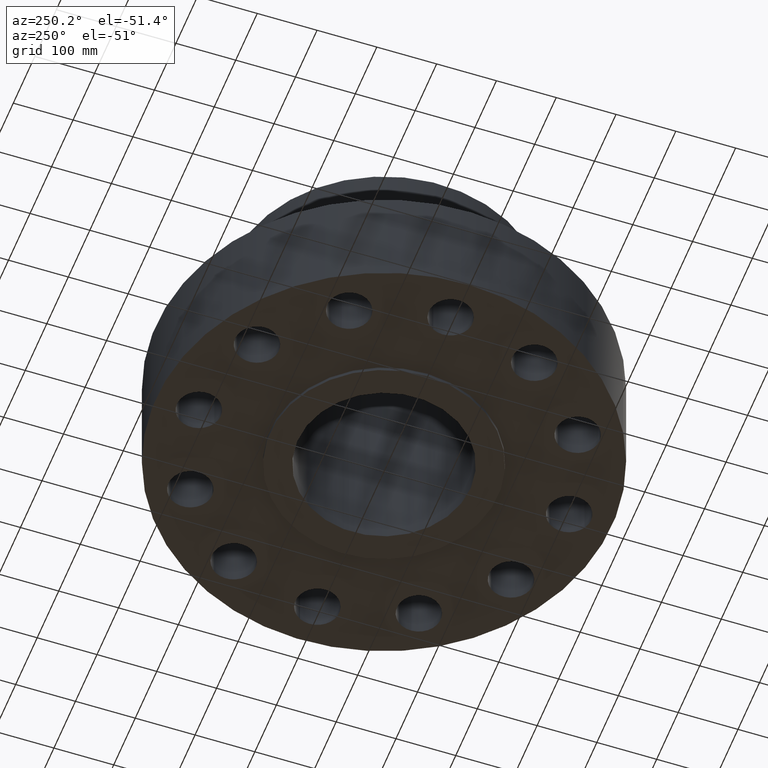
[diagram: clean part render]
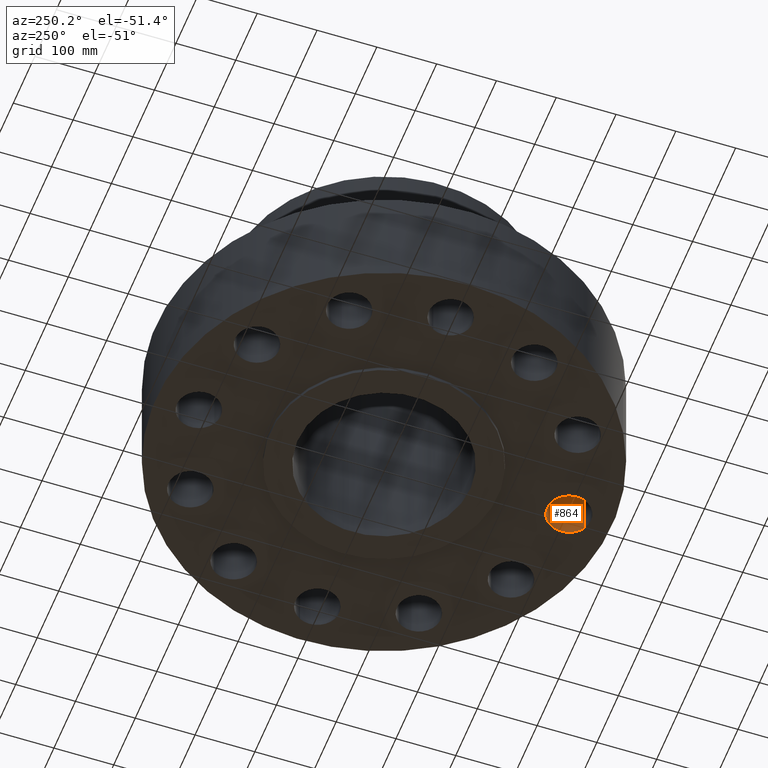
[diagram: same view with one face highlighted and labeled with its STEP entity id]
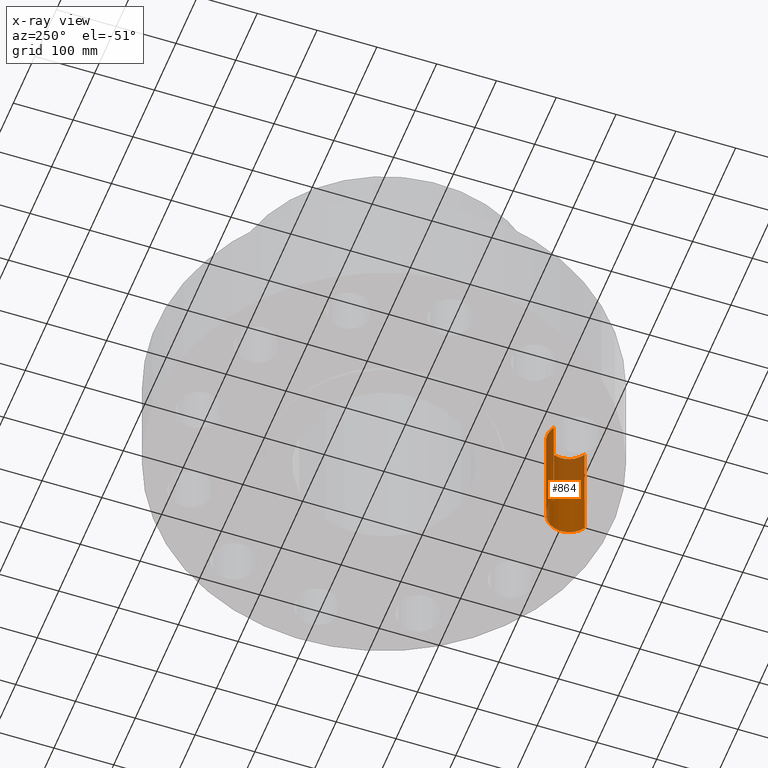
[diagram: x-ray of the same camera — body ghosted, the highlighted face saturated]
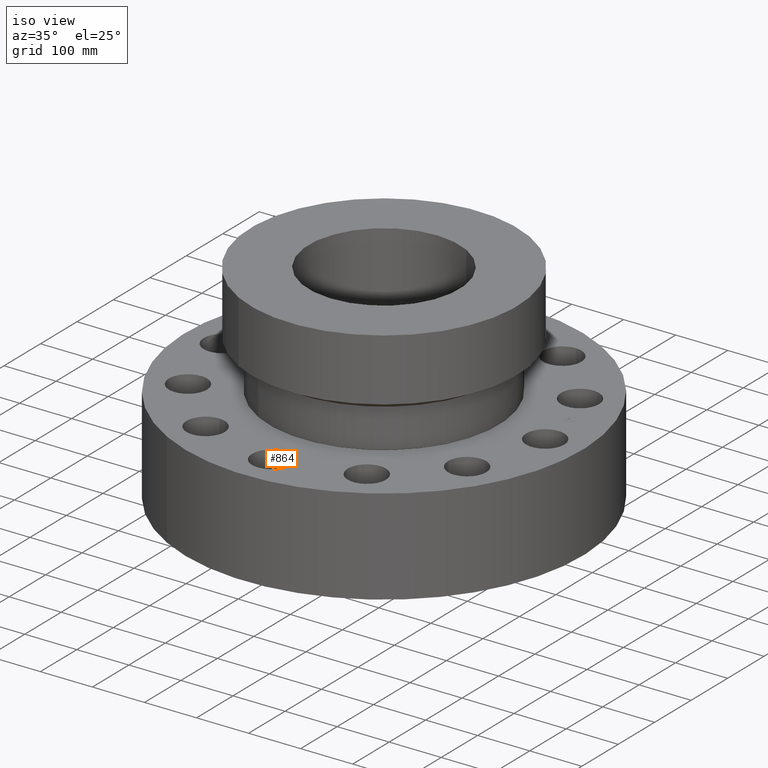
[diagram: same view with one face highlighted and labeled with its STEP entity id]
A machine part, auxiliary view. The second image highlights one B-rep face of the part: STEP entity #864.
The next image is the same camera in x-ray: the body ghosted, the highlighted face saturated — about 45% of this face is hidden behind the body in this view.
A second angle (iso view) of the same face is appended — the face is thin or edge-on in the first view.
In plain terms, the highlighted cylindrical surface (edge-blend (fillet) strip) has radius 36.576 mm, axis along (-0, 0, 1).
Its self-contained STEP definition (entity closure, byte-faithful):
#172=AXIS2_PLACEMENT_3D('Circle Axis2P3D',#170,#171,$) ;
#825=AXIS2_PLACEMENT_3D('Cylinder Axis2P3D',#822,#823,#824) ;
#855=AXIS2_PLACEMENT_3D('Circle Axis2P3D',#853,#854,$) ;
#165=CARTESIAN_POINT('Vertex',(0.690372775593,-13.4537188892,0.)) ;
#167=CARTESIAN_POINT('Vertex',(-0.690372775593,-10.9262811109,0.)) ;
#170=CARTESIAN_POINT('Axis2P3D Location',(1.53857679003E-015,-12.19,0.)) ;
#822=CARTESIAN_POINT('Axis2P3D Location',(7.46422224083E-016,-12.19,0.00393700787402)) ;
#827=CARTESIAN_POINT('Line Origine',(-0.690372775593,-10.9262811109,3.62500000001)) ;
#831=CARTESIAN_POINT('Vertex',(-0.690372775593,-10.9262811109,7.25000000003)) ;
#838=CARTESIAN_POINT('Vertex',(0.690372775593,-13.4537188892,7.25000000003)) ;
#841=CARTESIAN_POINT('Line Origine',(0.690372775593,-13.4537188892,3.62500000001)) ;
#853=CARTESIAN_POINT('Axis2P3D Location',(7.46422224083E-016,-12.19,7.25000000003)) ;
#171=DIRECTION('Axis2P3D Direction',(0.,0.,-0.0393700787402)) ;
#823=DIRECTION('Axis2P3D Direction',(-0.,0.,0.0393700787402)) ;
#824=DIRECTION('Axis2P3D XDirection',(0.0188750212049,-0.0345504945626,0.)) ;
#828=DIRECTION('Vector Direction',(0.,0.,0.0393700787402)) ;
#842=DIRECTION('Vector Direction',(0.,0.,0.0393700787402)) ;
#854=DIRECTION('Axis2P3D Direction',(-0.,0.,0.0393700787402)) ;
#829=VECTOR('Line Direction',#828,0.0393700787402) ;
#843=VECTOR('Line Direction',#842,0.0393700787402) ;
#859=ORIENTED_EDGE('',*,*,#845,.F.) ;
#860=ORIENTED_EDGE('',*,*,#857,.F.) ;
#861=ORIENTED_EDGE('',*,*,#833,.T.) ;
#862=ORIENTED_EDGE('',*,*,#174,.T.) ;
#864=ADVANCED_FACE('PartBody',(#863),#826,.F.) ;
#173=CIRCLE('generated circle',#172,1.44000000001) ;
#856=CIRCLE('generated circle',#855,1.44000000001) ;
#826=CYLINDRICAL_SURFACE('generated cylinder',#825,1.44000000001) ;
#174=EDGE_CURVE('',#168,#166,#173,.T.) ;
#833=EDGE_CURVE('',#832,#168,#830,.F.) ;
#845=EDGE_CURVE('',#839,#166,#844,.F.) ;
#857=EDGE_CURVE('',#832,#839,#856,.F.) ;
#858=EDGE_LOOP('',(#859,#860,#861,#862)) ;
#863=FACE_OUTER_BOUND('',#858,.T.) ;
#830=LINE('Line',#827,#829) ;
#844=LINE('Line',#841,#843) ;
#166=VERTEX_POINT('',#165) ;
#168=VERTEX_POINT('',#167) ;
#832=VERTEX_POINT('',#831) ;
#839=VERTEX_POINT('',#838) ;